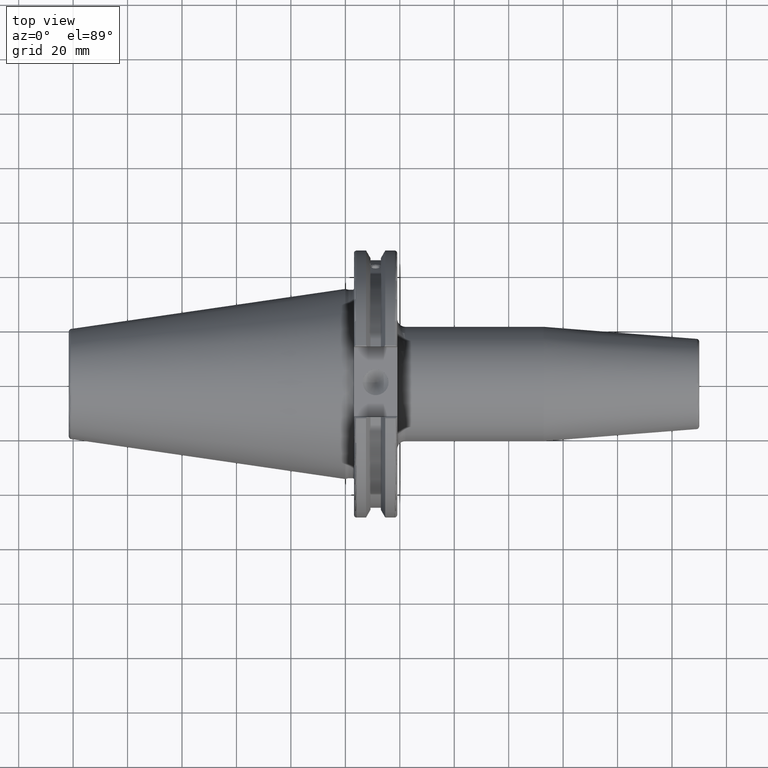
[diagram: clean part render]
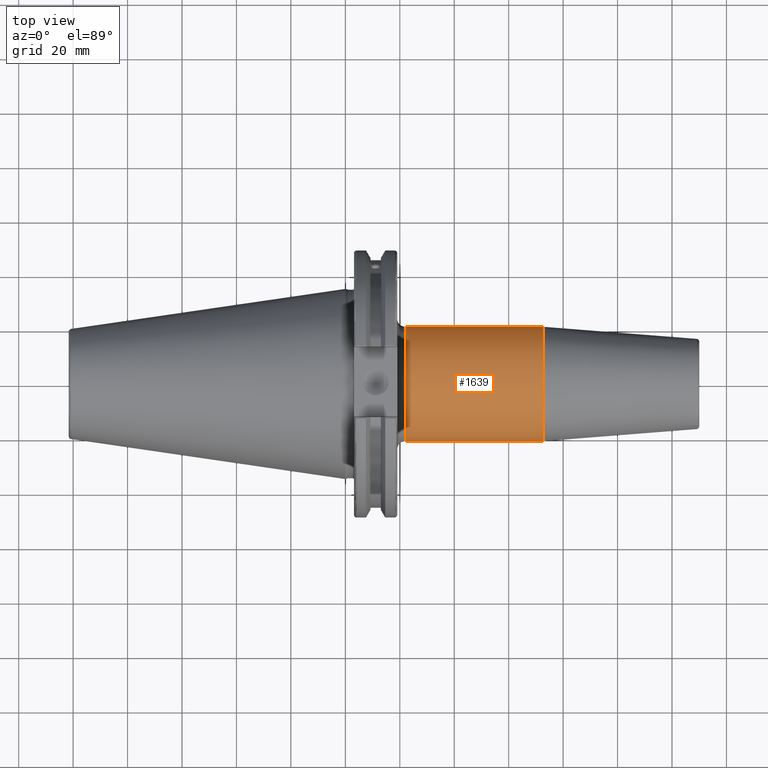
[diagram: same view with one face highlighted and labeled with its STEP entity id]
A machine part, top view. The second image highlights one B-rep face of the part: STEP entity #1639.
In plain terms, the highlighted cylindrical surface (bore or boss wall) has radius 21 mm, axis along (1, 0, 0).
Its self-contained STEP definition (entity closure, byte-faithful):
#159=FACE_OUTER_BOUND('',#249,.T.);
#249=EDGE_LOOP('',(#1140,#1141,#1142,#1143,#1144,#1145,#1146));
#350=LINE('',#2570,#444);
#444=VECTOR('',#2015,21.);
#548=CIRCLE('',#1760,21.);
#549=CIRCLE('',#1761,21.);
#552=CIRCLE('',#1766,21.);
#556=CIRCLE('',#1770,21.);
#557=CIRCLE('',#1771,21.);
#660=VERTEX_POINT('',#2547);
#661=VERTEX_POINT('',#2549);
#664=VERTEX_POINT('',#2558);
#665=VERTEX_POINT('',#2559);
#668=VERTEX_POINT('',#2566);
#851=EDGE_CURVE('',#660,#661,#548,.T.);
#852=EDGE_CURVE('',#661,#660,#549,.T.);
#855=EDGE_CURVE('',#664,#665,#552,.T.);
#859=EDGE_CURVE('',#665,#668,#556,.T.);
#860=EDGE_CURVE('',#668,#664,#557,.T.);
#861=EDGE_CURVE('',#660,#668,#350,.T.);
#1140=ORIENTED_EDGE('',*,*,#852,.F.);
#1141=ORIENTED_EDGE('',*,*,#851,.F.);
#1142=ORIENTED_EDGE('',*,*,#861,.T.);
#1143=ORIENTED_EDGE('',*,*,#859,.F.);
#1144=ORIENTED_EDGE('',*,*,#855,.F.);
#1145=ORIENTED_EDGE('',*,*,#860,.F.);
#1146=ORIENTED_EDGE('',*,*,#861,.F.);
#1605=CYLINDRICAL_SURFACE('',#1772,21.);
#1639=ADVANCED_FACE('',(#159),#1605,.T.);
#1760=AXIS2_PLACEMENT_3D('',#2550,#1989,#1990);
#1761=AXIS2_PLACEMENT_3D('',#2551,#1991,#1992);
#1766=AXIS2_PLACEMENT_3D('',#2560,#2001,#2002);
#1770=AXIS2_PLACEMENT_3D('',#2567,#2009,#2010);
#1771=AXIS2_PLACEMENT_3D('',#2568,#2011,#2012);
#1772=AXIS2_PLACEMENT_3D('',#2569,#2013,#2014);
#1989=DIRECTION('center_axis',(1.,0.,0.));
#1990=DIRECTION('ref_axis',(0.,0.,-1.));
#1991=DIRECTION('center_axis',(1.,0.,0.));
#1992=DIRECTION('ref_axis',(0.,0.,-1.));
#2001=DIRECTION('center_axis',(-1.,0.,0.));
#2002=DIRECTION('ref_axis',(0.,-1.,-1.22464679914735E-16));
#2009=DIRECTION('center_axis',(-1.,0.,0.));
#2010=DIRECTION('ref_axis',(0.,-1.,-1.22464679914735E-16));
#2011=DIRECTION('center_axis',(-1.,0.,0.));
#2012=DIRECTION('ref_axis',(0.,-1.,-1.22464679914735E-16));
#2013=DIRECTION('center_axis',(1.,0.,0.));
#2014=DIRECTION('ref_axis',(0.,1.,0.));
#2015=DIRECTION('',(-1.,0.,0.));
#2547=CARTESIAN_POINT('',(72.8220786872139,-21.,-2.57175827820944E-15));
#2549=CARTESIAN_POINT('',(72.8220786872139,21.,0.));
#2550=CARTESIAN_POINT('Origin',(72.8220786872139,0.,0.));
#2551=CARTESIAN_POINT('Origin',(72.8220786872139,0.,0.));
#2558=CARTESIAN_POINT('',(22.05,21.,0.));
#2559=CARTESIAN_POINT('',(22.05,-2.57175827820944E-15,-21.));
#2560=CARTESIAN_POINT('Origin',(22.05,0.,0.));
#2566=CARTESIAN_POINT('',(22.05,-21.,-2.57175827820944E-15));
#2567=CARTESIAN_POINT('Origin',(22.05,0.,0.));
#2568=CARTESIAN_POINT('Origin',(22.05,0.,0.));
#2569=CARTESIAN_POINT('Origin',(45.936039343607,0.,0.));
#2570=CARTESIAN_POINT('',(45.936039343607,-21.,-2.57175827820944E-15));